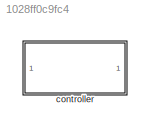
MODEL slx_1028ff0c9fc4
KIND model
CONFIG AbsTol = auto
CONFIG FixedStep = auto
CONFIG MaxStep = auto
CONFIG MinStep = auto
CONFIG RelTol = 1e-3
CONFIG SampleTimeConstraint = Unconstrained
CONFIG Solver = VariableStepAuto
CONFIG SolverMode = Auto
CONFIG SolverName = VariableStepAuto
CONFIG StartTime = 0.0
CONFIG StopTime = 10.0
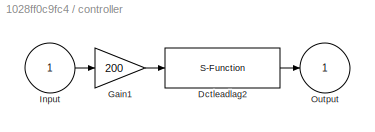
BLOCK [SubSystem] controller
  Ports = [1, 1]
  RequestExecContextInheritance = off
  Variant = off
BLOCK [S-Function] controller/Dctleadlag2
  EnableBusSupport = off
  FunctionName = dleadlag
  Parameters = f_num, f_den, 0.001
  Ports = [1, 1]
  SFunctionDeploymentMode = off
BLOCK [Gain] controller/Gain1
  Gain = 200
BLOCK [Inport] controller/Input
  IconDisplay = Port number
BLOCK [Outport] controller/Output
  IconDisplay = Port number
LINE controller/Dctleadlag2:1 -> controller/Output:1
LINE controller/Gain1:1 -> controller/Dctleadlag2:1
LINE controller/Input:1 -> controller/Gain1:1
